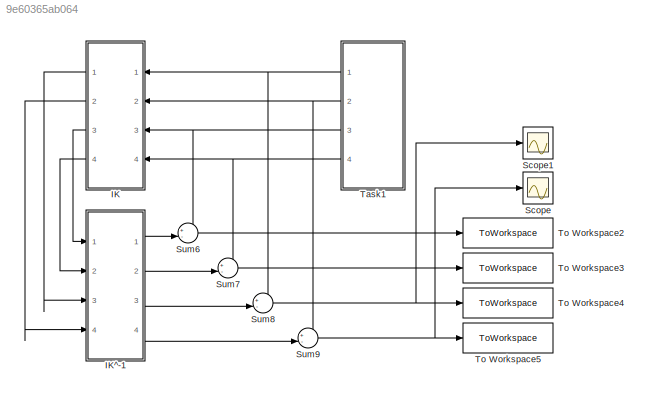
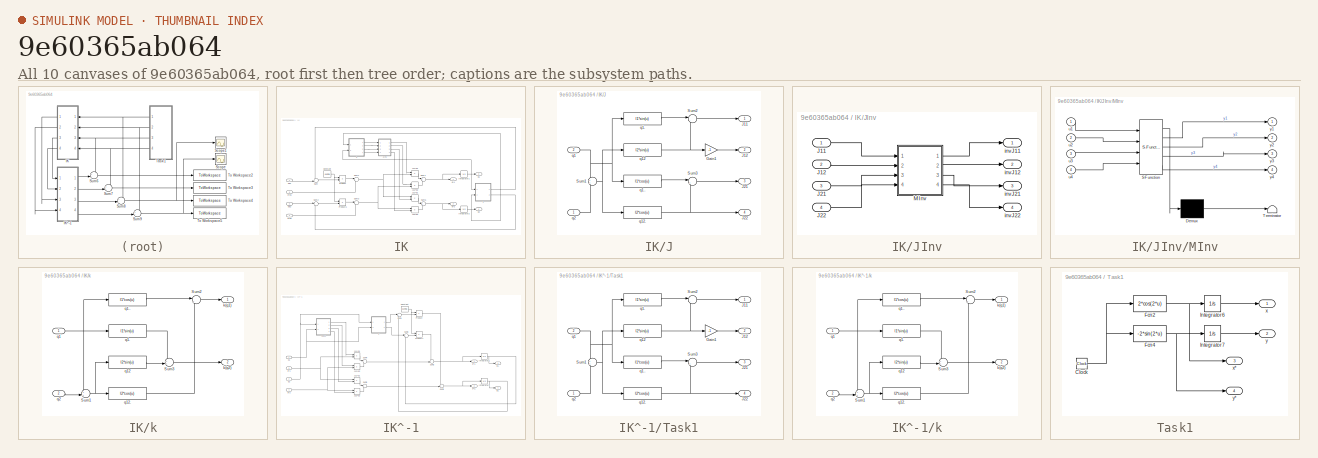
[diagram: thumbnail index - all 10 canvases of the model, root first then tree order]
MODEL slx_9e60365ab064
KIND model
CONFIG AbsTol = auto
CONFIG EnableMultiTasking = off
CONFIG FixedStep = auto
CONFIG MaxStep = auto
CONFIG MinStep = auto
CONFIG RelTol = 1e-3
CONFIG SampleTimeConstraint = Unconstrained
CONFIG Solver = VariableStepAuto
CONFIG SolverName = VariableStepAuto
CONFIG StartTime = 0.0
CONFIG StopTime = 10.0
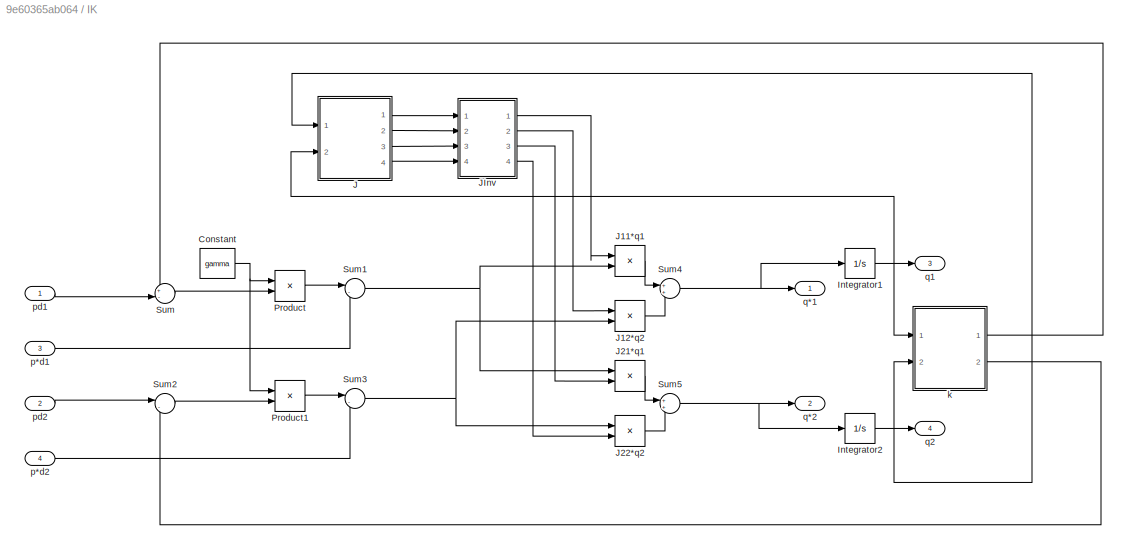
BLOCK [SubSystem] IK
  Ports = [4, 4]
  RequestExecContextInheritance = off
BLOCK [Constant] IK/Constant
  Value = gamma
BLOCK [Integrator] IK/Integrator1
  InitialCondition = 0.1
  Ports = [1, 1]
BLOCK [Integrator] IK/Integrator2
  InitialCondition = 0.1
  Ports = [1, 1]
BLOCK [SubSystem] IK/J
  Ports = [2, 4]
  RequestExecContextInheritance = off
BLOCK [Gain] IK/J/Gain1
  Gain = -1
BLOCK [Outport] IK/J/J11
BLOCK [Outport] IK/J/J12
  Port = 2
BLOCK [Outport] IK/J/J21
  Port = 3
BLOCK [Outport] IK/J/J22
  Port = 4
BLOCK [Sum] IK/J/Sum1
  Ports = [2, 1]
BLOCK [Sum] IK/J/Sum2
  Inputs = |--
  Ports = [2, 1]
BLOCK [Sum] IK/J/Sum3
  Inputs = |++
  Ports = [2, 1]
BLOCK [Inport] IK/J/q1
  Port = 2
BLOCK [Fcn] IK/J/q1.
  Expr = l1*sin(u)
BLOCK [Fcn] IK/J/q1..
  Expr = l1*cos(u)
BLOCK [Fcn] IK/J/q12
  Expr = l2*sin(u)
BLOCK [Fcn] IK/J/q12.
  Expr = l2*cos(u)
BLOCK [Inport] IK/J/q2
BLOCK [Product] IK/J11*q1
  Ports = [2, 1]
BLOCK [Product] IK/J12*q2
  Ports = [2, 1]
BLOCK [Product] IK/J21*q1
  Ports = [2, 1]
BLOCK [Product] IK/J22*q2
  Ports = [2, 1]
BLOCK [SubSystem] IK/JInv
  Ports = [4, 4]
  RequestExecContextInheritance = off
BLOCK [Inport] IK/JInv/J11
BLOCK [Inport] IK/JInv/J12
  Port = 2
BLOCK [Inport] IK/JInv/J21
  Port = 3
BLOCK [Inport] IK/JInv/J22
  Port = 4
BLOCK [SubSystem] IK/JInv/MInv
  ErrorFcn = Stateflow.Translate.translate
  PermitHierarchicalResolution = ExplicitOnly
  Ports = [4, 4]
  RequestExecContextInheritance = off
  SFBlockType = MATLAB Function
  TreatAsAtomicUnit = on
BLOCK [Demux] IK/JInv/MInv/ Demux 
  Outputs = 1
  Ports = [1, 1]
BLOCK [S-Function] IK/JInv/MInv/ SFunction 
  EnableBusSupport = on
  FunctionName = sf_sfun
  PortCounts = [4 5]
  Ports = [4, 5]
  SFcnIsStateOwnerBlock = off
  SFunctionDeploymentMode = off
  Tag = Stateflow S-Function 11
BLOCK [Terminator] IK/JInv/MInv/ Terminator 
BLOCK [Inport] IK/JInv/MInv/u1
BLOCK [Inport] IK/JInv/MInv/u2
  Port = 2
BLOCK [Inport] IK/JInv/MInv/u3
  Port = 3
BLOCK [Inport] IK/JInv/MInv/u4
  Port = 4
BLOCK [Outport] IK/JInv/MInv/y1
BLOCK [Outport] IK/JInv/MInv/y2
  Port = 2
BLOCK [Outport] IK/JInv/MInv/y3
  Port = 3
BLOCK [Outport] IK/JInv/MInv/y4
  Port = 4
BLOCK [Outport] IK/JInv/invJ11
BLOCK [Outport] IK/JInv/invJ12
  Port = 2
BLOCK [Outport] IK/JInv/invJ21
  Port = 3
BLOCK [Outport] IK/JInv/invJ22
  Port = 4
BLOCK [Product] IK/Product
  Ports = [2, 1]
BLOCK [Product] IK/Product1
  Ports = [2, 1]
BLOCK [Sum] IK/Sum
  Inputs = +-|
  Ports = [2, 1]
BLOCK [Sum] IK/Sum1
  Inputs = |-+
  Ports = [2, 1]
BLOCK [Sum] IK/Sum2
  Inputs = |-+
  Ports = [2, 1]
BLOCK [Sum] IK/Sum3
  Inputs = |-+
  Ports = [2, 1]
BLOCK [Sum] IK/Sum4
  Ports = [2, 1]
BLOCK [Sum] IK/Sum5
  Ports = [2, 1]
BLOCK [SubSystem] IK/k
  Ports = [2, 2]
  RequestExecContextInheritance = off
BLOCK [Sum] IK/k/Sum1
  Inputs = ++|
  Ports = [2, 1]
BLOCK [Sum] IK/k/Sum2
  Inputs = |++
  Ports = [2, 1]
BLOCK [Sum] IK/k/Sum3
  Inputs = ++|
  Ports = [2, 1]
BLOCK [Outport] IK/k/k(q1)
BLOCK [Outport] IK/k/k(q2)
  Port = 2
BLOCK [Inport] IK/k/q1
BLOCK [Fcn] IK/k/q1.
  Expr = l1*sin(u)
BLOCK [Fcn] IK/k/q1..
  Expr = l1*cos(u)
BLOCK [Fcn] IK/k/q12
  Expr = l2*sin(u)
BLOCK [Fcn] IK/k/q12.
  Expr = l2*cos(u)
BLOCK [Inport] IK/k/q2
  Port = 2
BLOCK [Inport] IK/p*d1
  Port = 3
BLOCK [Inport] IK/p*d2
  Port = 4
BLOCK [Inport] IK/pd1
BLOCK [Inport] IK/pd2
  Port = 2
BLOCK [Outport] IK/q*1
BLOCK [Outport] IK/q*2
  Port = 2
BLOCK [Outport] IK/q1
  Port = 3
BLOCK [Outport] IK/q2
  Port = 4
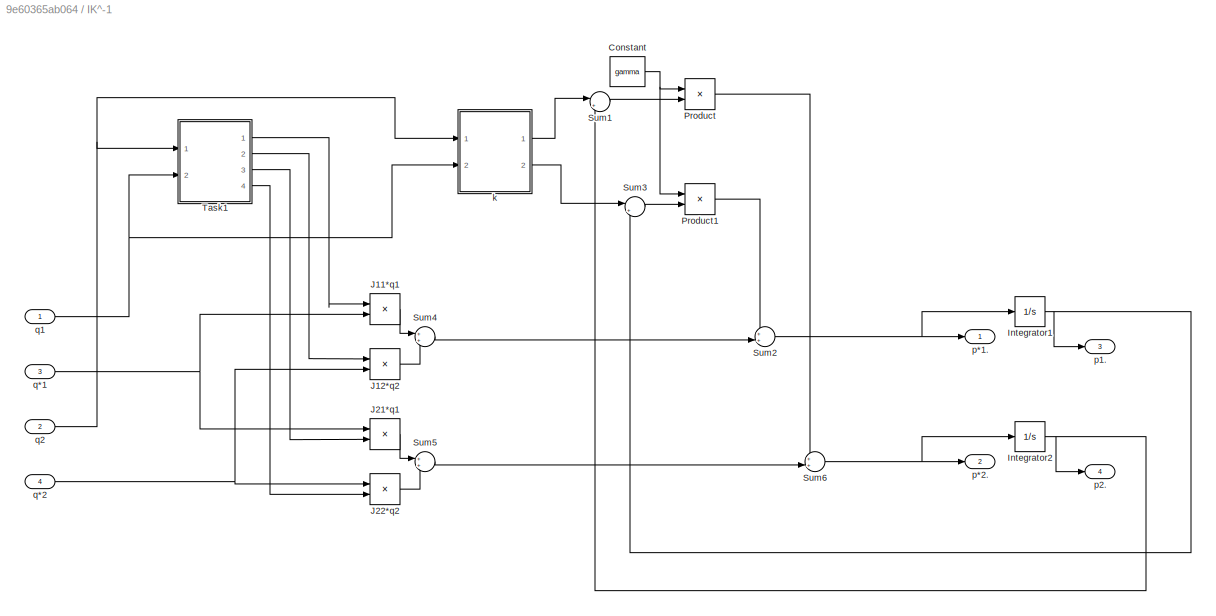
BLOCK [SubSystem] IK^-1
  Ports = [4, 4]
  RequestExecContextInheritance = off
BLOCK [Constant] IK^-1/Constant
  Value = gamma
BLOCK [Integrator] IK^-1/Integrator1
  InitialCondition = 0.1
  Ports = [1, 1]
BLOCK [Integrator] IK^-1/Integrator2
  InitialCondition = 0.1
  Ports = [1, 1]
BLOCK [Product] IK^-1/J11*q1
  Ports = [2, 1]
BLOCK [Product] IK^-1/J12*q2
  Ports = [2, 1]
BLOCK [Product] IK^-1/J21*q1
  Ports = [2, 1]
BLOCK [Product] IK^-1/J22*q2
  Ports = [2, 1]
BLOCK [Product] IK^-1/Product
  Ports = [2, 1]
BLOCK [Product] IK^-1/Product1
  Ports = [2, 1]
BLOCK [Sum] IK^-1/Sum1
  Inputs = |+-
  Ports = [2, 1]
BLOCK [Sum] IK^-1/Sum2
  Inputs = ++|
  Ports = [2, 1]
BLOCK [Sum] IK^-1/Sum3
  Inputs = |+-
  Ports = [2, 1]
BLOCK [Sum] IK^-1/Sum4
  Ports = [2, 1]
BLOCK [Sum] IK^-1/Sum5
  Ports = [2, 1]
BLOCK [Sum] IK^-1/Sum6
  Inputs = ++|
  Ports = [2, 1]
BLOCK [SubSystem] IK^-1/Task1
  Ports = [2, 4]
  RequestExecContextInheritance = off
BLOCK [Gain] IK^-1/Task1/Gain1
  Gain = -1
BLOCK [Outport] IK^-1/Task1/J11
BLOCK [Outport] IK^-1/Task1/J12
  Port = 2
BLOCK [Outport] IK^-1/Task1/J21
  Port = 3
BLOCK [Outport] IK^-1/Task1/J22
  Port = 4
BLOCK [Sum] IK^-1/Task1/Sum1
  Ports = [2, 1]
BLOCK [Sum] IK^-1/Task1/Sum2
  Inputs = |--
  Ports = [2, 1]
BLOCK [Sum] IK^-1/Task1/Sum3
  Inputs = |++
  Ports = [2, 1]
BLOCK [Inport] IK^-1/Task1/q1
  Port = 2
BLOCK [Fcn] IK^-1/Task1/q1.
  Expr = l1*sin(u)
BLOCK [Fcn] IK^-1/Task1/q1..
  Expr = l1*cos(u)
BLOCK [Fcn] IK^-1/Task1/q12
  Expr = l2*sin(u)
BLOCK [Fcn] IK^-1/Task1/q12.
  Expr = l2*cos(u)
BLOCK [Inport] IK^-1/Task1/q2
BLOCK [SubSystem] IK^-1/k
  Ports = [2, 2]
  RequestExecContextInheritance = off
BLOCK [Sum] IK^-1/k/Sum1
  Inputs = ++|
  Ports = [2, 1]
BLOCK [Sum] IK^-1/k/Sum2
  Inputs = |++
  Ports = [2, 1]
BLOCK [Sum] IK^-1/k/Sum3
  Inputs = ++|
  Ports = [2, 1]
BLOCK [Outport] IK^-1/k/k(q1)
BLOCK [Outport] IK^-1/k/k(q2)
  Port = 2
BLOCK [Inport] IK^-1/k/q1
BLOCK [Fcn] IK^-1/k/q1.
  Expr = l1*sin(u)
BLOCK [Fcn] IK^-1/k/q1..
  Expr = l1*cos(u)
BLOCK [Fcn] IK^-1/k/q12
  Expr = l2*sin(u)
BLOCK [Fcn] IK^-1/k/q12.
  Expr = l2*cos(u)
BLOCK [Inport] IK^-1/k/q2
  Port = 2
BLOCK [Outport] IK^-1/p*1.
BLOCK [Outport] IK^-1/p*2.
  Port = 2
BLOCK [Outport] IK^-1/p1.
  Port = 3
BLOCK [Outport] IK^-1/p2.
  Port = 4
BLOCK [Inport] IK^-1/q*1
  Port = 3
BLOCK [Inport] IK^-1/q*2
  Port = 4
BLOCK [Inport] IK^-1/q1
BLOCK [Inport] IK^-1/q2
  Port = 2
BLOCK [Scope] Scope
  Floating = off
  NumInputPorts = 1
  Ports = [1]
  ScopeSpecificationString = Simulink.scopes.TimeScopeBlockCfg('CurrentConfiguration', extmgr.ConfigurationSet(extmgr.Configuration('Core','General UI',true),extmgr.Configuration('Core','Source UI',true),extmgr.Configuration('Sources','WiredSimulink',true),extmgr.Configuration('Visuals','Time Domain',true,'SerializedDisplays',{struct('MinYLimReal','-0.30685','MaxYLimReal','2.70699','YLabelReal','','MinYLimMag','0.00000','MaxY...<+1324ch>
BLOCK [Scope] Scope1
  Floating = off
  NumInputPorts = 1
  Ports = [1]
  ScopeSpecificationString = Simulink.scopes.TimeScopeBlockCfg('CurrentConfiguration', extmgr.ConfigurationSet(extmgr.Configuration('Core','General UI',true),extmgr.Configuration('Core','Source UI',true),extmgr.Configuration('Sources','WiredSimulink',true,'DataLoggingVariableName','ScopeData1'),extmgr.Configuration('Visuals','Time Domain',true,'SerializedDisplays',{struct('MinYLimReal','-1.47026','MaxYLimReal','3.19568','YLab...<+1363ch>
BLOCK [Sum] Sum6
  Inputs = +-|
  Ports = [2, 1]
BLOCK [Sum] Sum7
  Inputs = +-|
  Ports = [2, 1]
BLOCK [Sum] Sum8
  Inputs = +-|
  Ports = [2, 1]
BLOCK [Sum] Sum9
  Inputs = +-|
  Ports = [2, 1]
BLOCK [SubSystem] Task1
  Ports = [0, 4]
  RequestExecContextInheritance = off
BLOCK [Clock] Task1/Clock
BLOCK [Fcn] Task1/Fcn2
  Expr = 2*cos(2*u)
BLOCK [Fcn] Task1/Fcn4
  Expr = -2*sin(2*u)
BLOCK [Integrator] Task1/Integrator6
  Ports = [1, 1]
BLOCK [Integrator] Task1/Integrator7
  InitialCondition = 1
  Ports = [1, 1]
BLOCK [Outport] Task1/x
BLOCK [Outport] Task1/x*
  Port = 3
BLOCK [Outport] Task1/y
  Port = 2
BLOCK [Outport] Task1/y*
  Port = 4
BLOCK [ToWorkspace] To Workspace2
  FixptAsFi = on
  MaxDataPoints = inf
  Ports = [1]
  SampleTime = -1
  VariableName = IKeI1
BLOCK [ToWorkspace] To Workspace3
  FixptAsFi = on
  MaxDataPoints = inf
  Ports = [1]
  SampleTime = -1
  VariableName = IKeI2
BLOCK [ToWorkspace] To Workspace4
  FixptAsFi = on
  MaxDataPoints = inf
  Ports = [1]
  SampleTime = -1
  VariableName = IKe1
BLOCK [ToWorkspace] To Workspace5
  FixptAsFi = on
  MaxDataPoints = inf
  Ports = [1]
  SampleTime = -1
  VariableName = IKe2
NET IK/Constant:1 -> IK/Product1:1, IK/Product:1
NET IK/Integrator1:1 -> IK/J:2, IK/k:1, IK/q1:1
NET IK/Integrator2:1 -> IK/J:1, IK/k:2, IK/q2:1
LINE IK/J/Gain1:1 -> IK/J/J12:1
NET IK/J/Sum1:1 -> IK/J/q12.:1, IK/J/q12:1
LINE IK/J/Sum2:1 -> IK/J/J11:1
LINE IK/J/Sum3:1 -> IK/J/J21:1
LINE IK/J/q1..:1 -> IK/J/Sum3:1
LINE IK/J/q1.:1 -> IK/J/Sum2:1
NET IK/J/q12.:1 -> IK/J/J22:1, IK/J/Sum3:2
NET IK/J/q12:1 -> IK/J/Gain1:1, IK/J/Sum2:2
NET IK/J/q1:1 -> IK/J/Sum1:1, IK/J/q1..:1, IK/J/q1.:1
LINE IK/J/q2:1 -> IK/J/Sum1:2
LINE IK/J11*q1:1 -> IK/Sum4:1
LINE IK/J12*q2:1 -> IK/Sum4:2
LINE IK/J21*q1:1 -> IK/Sum5:1
LINE IK/J22*q2:1 -> IK/Sum5:2
LINE IK/J:1 -> IK/JInv:1
LINE IK/J:2 -> IK/JInv:2
LINE IK/J:3 -> IK/JInv:3
LINE IK/J:4 -> IK/JInv:4
LINE IK/JInv/J11:1 -> IK/JInv/MInv:1
LINE IK/JInv/J12:1 -> IK/JInv/MInv:2
LINE IK/JInv/J21:1 -> IK/JInv/MInv:3
LINE IK/JInv/J22:1 -> IK/JInv/MInv:4
LINE IK/JInv/MInv:1 -> IK/JInv/invJ11:1
LINE IK/JInv/MInv:2 -> IK/JInv/invJ12:1
LINE IK/JInv/MInv:3 -> IK/JInv/invJ21:1
LINE IK/JInv/MInv:4 -> IK/JInv/invJ22:1
LINE IK/JInv:1 -> IK/J11*q1:1
LINE IK/JInv:2 -> IK/J12*q2:1
LINE IK/JInv:3 -> IK/J21*q1:2
LINE IK/JInv:4 -> IK/J22*q2:2
LINE IK/Product1:1 -> IK/Sum3:1
LINE IK/Product:1 -> IK/Sum1:1
NET IK/Sum1:1 -> IK/J11*q1:2, IK/J21*q1:1
LINE IK/Sum2:1 -> IK/Product1:2
NET IK/Sum3:1 -> IK/J12*q2:2, IK/J22*q2:1
NET IK/Sum4:1 -> IK/Integrator1:1, IK/q*1:1
NET IK/Sum5:1 -> IK/Integrator2:1, IK/q*2:1
LINE IK/Sum:1 -> IK/Product:2
NET IK/k/Sum1:1 -> IK/k/q12.:1, IK/k/q12:1
LINE IK/k/Sum2:1 -> IK/k/k(q1):1
LINE IK/k/Sum3:1 -> IK/k/k(q2):1
LINE IK/k/q1..:1 -> IK/k/Sum2:1
LINE IK/k/q1.:1 -> IK/k/Sum3:1
LINE IK/k/q12.:1 -> IK/k/Sum2:2
LINE IK/k/q12:1 -> IK/k/Sum3:2
NET IK/k/q1:1 -> IK/k/Sum1:1, IK/k/q1..:1, IK/k/q1.:1
LINE IK/k/q2:1 -> IK/k/Sum1:2
LINE IK/k:1 -> IK/Sum:1
LINE IK/k:2 -> IK/Sum2:2
LINE IK/p*d1:1 -> IK/Sum1:2
LINE IK/p*d2:1 -> IK/Sum3:2
LINE IK/pd1:1 -> IK/Sum:2
LINE IK/pd2:1 -> IK/Sum2:1
LINE IK:1 -> IK^-1:3
LINE IK:2 -> IK^-1:4
LINE IK:3 -> IK^-1:1
LINE IK:4 -> IK^-1:2
NET IK^-1/Constant:1 -> IK^-1/Product1:1, IK^-1/Product:1
NET IK^-1/Integrator1:1 -> IK^-1/Sum3:2, IK^-1/p1.:1
NET IK^-1/Integrator2:1 -> IK^-1/Sum1:2, IK^-1/p2.:1
LINE IK^-1/J11*q1:1 -> IK^-1/Sum4:1
LINE IK^-1/J12*q2:1 -> IK^-1/Sum4:2
LINE IK^-1/J21*q1:1 -> IK^-1/Sum5:1
LINE IK^-1/J22*q2:1 -> IK^-1/Sum5:2
LINE IK^-1/Product1:1 -> IK^-1/Sum2:1
LINE IK^-1/Product:1 -> IK^-1/Sum6:1
LINE IK^-1/Sum1:1 -> IK^-1/Product:2
NET IK^-1/Sum2:1 -> IK^-1/Integrator1:1, IK^-1/p*1.:1
LINE IK^-1/Sum3:1 -> IK^-1/Product1:2
LINE IK^-1/Sum4:1 -> IK^-1/Sum2:2
LINE IK^-1/Sum5:1 -> IK^-1/Sum6:2
NET IK^-1/Sum6:1 -> IK^-1/Integrator2:1, IK^-1/p*2.:1
LINE IK^-1/Task1/Gain1:1 -> IK^-1/Task1/J12:1
NET IK^-1/Task1/Sum1:1 -> IK^-1/Task1/q12.:1, IK^-1/Task1/q12:1
LINE IK^-1/Task1/Sum2:1 -> IK^-1/Task1/J11:1
LINE IK^-1/Task1/Sum3:1 -> IK^-1/Task1/J21:1
LINE IK^-1/Task1/q1..:1 -> IK^-1/Task1/Sum3:1
LINE IK^-1/Task1/q1.:1 -> IK^-1/Task1/Sum2:1
NET IK^-1/Task1/q12.:1 -> IK^-1/Task1/J22:1, IK^-1/Task1/Sum3:2
NET IK^-1/Task1/q12:1 -> IK^-1/Task1/Gain1:1, IK^-1/Task1/Sum2:2
NET IK^-1/Task1/q1:1 -> IK^-1/Task1/Sum1:1, IK^-1/Task1/q1..:1, IK^-1/Task1/q1.:1
LINE IK^-1/Task1/q2:1 -> IK^-1/Task1/Sum1:2
LINE IK^-1/Task1:1 -> IK^-1/J11*q1:1
LINE IK^-1/Task1:2 -> IK^-1/J12*q2:1
LINE IK^-1/Task1:3 -> IK^-1/J21*q1:2
LINE IK^-1/Task1:4 -> IK^-1/J22*q2:2
NET IK^-1/k/Sum1:1 -> IK^-1/k/q12.:1, IK^-1/k/q12:1
LINE IK^-1/k/Sum2:1 -> IK^-1/k/k(q1):1
LINE IK^-1/k/Sum3:1 -> IK^-1/k/k(q2):1
LINE IK^-1/k/q1..:1 -> IK^-1/k/Sum2:1
LINE IK^-1/k/q1.:1 -> IK^-1/k/Sum3:1
LINE IK^-1/k/q12.:1 -> IK^-1/k/Sum2:2
LINE IK^-1/k/q12:1 -> IK^-1/k/Sum3:2
NET IK^-1/k/q1:1 -> IK^-1/k/Sum1:1, IK^-1/k/q1..:1, IK^-1/k/q1.:1
LINE IK^-1/k/q2:1 -> IK^-1/k/Sum1:2
LINE IK^-1/k:1 -> IK^-1/Sum1:1
LINE IK^-1/k:2 -> IK^-1/Sum3:1
NET IK^-1/q*1:1 -> IK^-1/J11*q1:2, IK^-1/J21*q1:1
NET IK^-1/q*2:1 -> IK^-1/J12*q2:2, IK^-1/J22*q2:1
NET IK^-1/q1:1 -> IK^-1/Task1:2, IK^-1/k:2
NET IK^-1/q2:1 -> IK^-1/Task1:1, IK^-1/k:1
LINE IK^-1:1 -> Sum6:2
LINE IK^-1:2 -> Sum7:2
LINE IK^-1:3 -> Sum8:2
LINE IK^-1:4 -> Sum9:2
LINE Sum6:1 -> To Workspace2:1
LINE Sum7:1 -> To Workspace3:1
NET Sum8:1 -> Scope1:1, To Workspace4:1
NET Sum9:1 -> Scope:1, To Workspace5:1
NET Task1/Clock:1 -> Task1/Fcn2:1, Task1/Fcn4:1
NET Task1/Fcn2:1 -> Task1/Integrator6:1, Task1/x*:1
NET Task1/Fcn4:1 -> Task1/Integrator7:1, Task1/y*:1
LINE Task1/Integrator6:1 -> Task1/x:1
LINE Task1/Integrator7:1 -> Task1/y:1
NET Task1:1 -> IK:1, Sum8:1
NET Task1:2 -> IK:2, Sum9:1
NET Task1:3 -> IK:3, Sum6:1
NET Task1:4 -> IK:4, Sum7:1
note: NET lines group one-source signal fan-out (src -> all destinations, sorted); 1:1 wires keep LINE
CHART IK/JInv/MInv states=1 transitions=1
  STATE_LABEL 'eML_blk_kernel()'
  STATE_LABEL 'SCRIPT:\nfunction [y1, y2, y3, y4] = c(u1, u2, u3, u4)\n\ny = [u1 u2; u3 u4];\ny = inv(y);\n\ny1 = y(1);\ny2 = y(2);\ny3 = y(3);\ny4 = y(4);\n\n\n\n'
CHART  states=0 transitions=0
